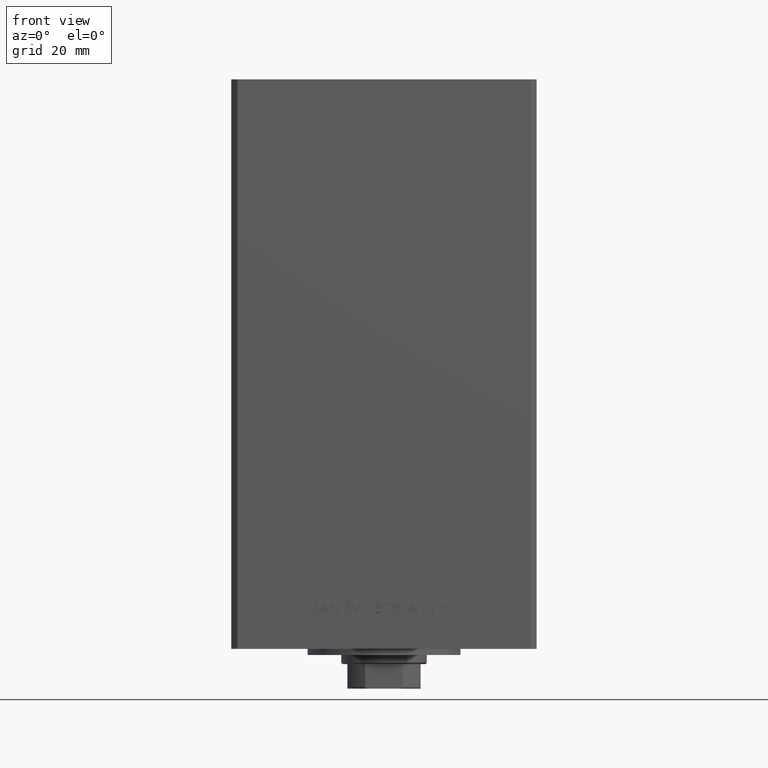
[diagram: clean part render]
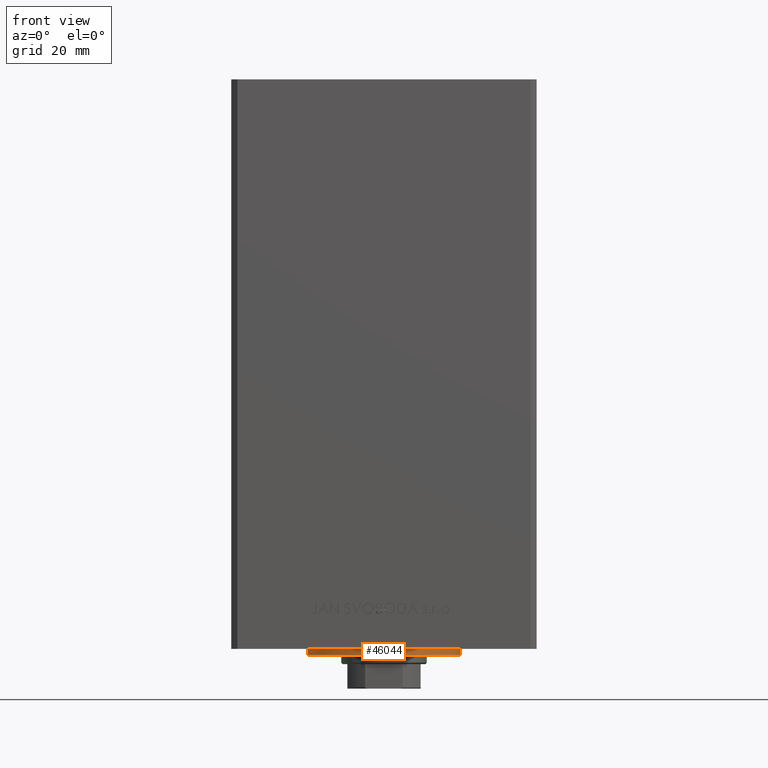
[diagram: same view with one face highlighted and labeled with its STEP entity id]
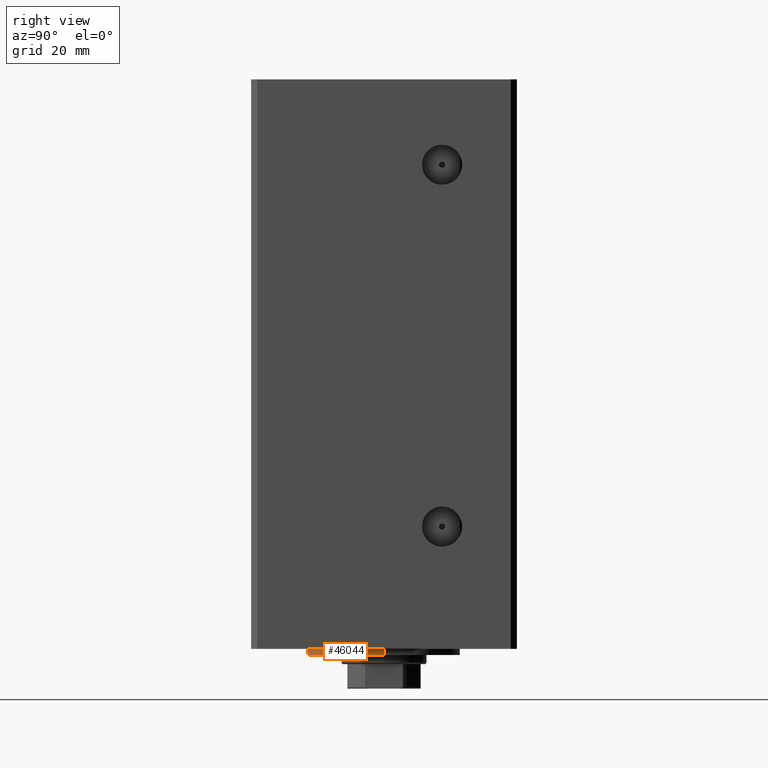
[diagram: same view with one face highlighted and labeled with its STEP entity id]
A machine part, front view. The second image highlights one B-rep face of the part: STEP entity #46044.
A second angle (right view) of the same face is appended — the face is thin or edge-on in the first view.
In plain terms, the highlighted cylindrical surface (partial cylindrical patch) has radius 25 mm, axis along (0, 0, 1).
Its self-contained STEP definition (entity closure, byte-faithful):
#336 = ORIENTED_EDGE ( 'NONE', *, *, #1061, .T. ) ;
#1061 = EDGE_CURVE ( 'NONE', #16385, #7352, #23842, .T. ) ;
#1760 = CARTESIAN_POINT ( 'NONE',  ( 0.000000000000000000, -6.938893903907228378E-15, 0.000000000000000000 ) ) ;
#2034 = AXIS2_PLACEMENT_3D ( 'NONE', #32909, #13839, #29161 ) ;
#2632 = CIRCLE ( 'NONE', #6653, 25.00000000000000000 ) ;
#2769 = VERTEX_POINT ( 'NONE', #18307 ) ;
#3892 = DIRECTION ( 'NONE',  ( 1.000000000000000000, 0.000000000000000000, 0.000000000000000000 ) ) ;
#5005 = VECTOR ( 'NONE', #42680, 1000.000000000000000 ) ;
#5008 = EDGE_CURVE ( 'NONE', #6382, #8108, #48324, .T. ) ;
#5616 = CARTESIAN_POINT ( 'NONE',  ( -25.00000000000000000, -6.938893903907228378E-15, 2.000000000000000000 ) ) ;
#5762 = DIRECTION ( 'NONE',  ( 1.000000000000000000, 0.000000000000000000, 0.000000000000000000 ) ) ;
#5830 = FACE_OUTER_BOUND ( 'NONE', #19287, .T. ) ;
#6044 = CARTESIAN_POINT ( 'NONE',  ( 0.000000000000000000, -6.938893903907228378E-15, 2.000000000000000000 ) ) ;
#6219 = EDGE_CURVE ( 'NONE', #43141, #8108, #18890, .T. ) ;
#6382 = VERTEX_POINT ( 'NONE', #39427 ) ;
#6653 = AXIS2_PLACEMENT_3D ( 'NONE', #46762, #12408, #3892 ) ;
#6726 = EDGE_CURVE ( 'NONE', #7352, #39366, #2632, .T. ) ;
#7352 = VERTEX_POINT ( 'NONE', #17288 ) ;
#7532 = ORIENTED_EDGE ( 'NONE', *, *, #49255, .T. ) ;
#7821 = AXIS2_PLACEMENT_3D ( 'NONE', #21206, #48022, #36487 ) ;
#8108 = VERTEX_POINT ( 'NONE', #27385 ) ;
#12408 = DIRECTION ( 'NONE',  ( 0.000000000000000000, 0.000000000000000000, 1.000000000000000000 ) ) ;
#13839 = DIRECTION ( 'NONE',  ( -0.000000000000000000, -0.000000000000000000, -1.000000000000000000 ) ) ;
#14943 = VECTOR ( 'NONE', #33182, 1000.000000000000000 ) ;
#15978 = DIRECTION ( 'NONE',  ( 0.000000000000000000, 0.000000000000000000, 1.000000000000000000 ) ) ;
#16385 = VERTEX_POINT ( 'NONE', #42669 ) ;
#16413 = DIRECTION ( 'NONE',  ( 0.000000000000000000, 0.000000000000000000, 1.000000000000000000 ) ) ;
#17288 = CARTESIAN_POINT ( 'NONE',  ( -23.57022603955158502, -8.333333333333332149, 0.000000000000000000 ) ) ;
#18307 = CARTESIAN_POINT ( 'NONE',  ( -25.00000000000000000, -6.938893903907228378E-15, 2.000000000000000000 ) ) ;
#18682 = CIRCLE ( 'NONE', #46707, 25.00000000000000000 ) ;
#18890 = LINE ( 'NONE', #27175, #5005 ) ;
#19287 = EDGE_LOOP ( 'NONE', ( #42205, #30027, #7532, #336, #26836, #22972, #34194 ) ) ;
#19571 = EDGE_CURVE ( 'NONE', #2769, #43141, #19875, .T. ) ;
#19875 = CIRCLE ( 'NONE', #38259, 25.00000000000000000 ) ;
#21148 = CYLINDRICAL_SURFACE ( 'NONE', #2034, 25.00000000000000000 ) ;
#21206 = CARTESIAN_POINT ( 'NONE',  ( 0.000000000000000000, -6.938893903907228378E-15, 0.000000000000000000 ) ) ;
#21368 = DIRECTION ( 'NONE',  ( 1.000000000000000000, 0.000000000000000000, 0.000000000000000000 ) ) ;
#22972 = ORIENTED_EDGE ( 'NONE', *, *, #36570, .T. ) ;
#23179 = CARTESIAN_POINT ( 'NONE',  ( 25.00000000000000000, -3.877276906038844941E-15, 2.000000000000000000 ) ) ;
#23842 = CIRCLE ( 'NONE', #7821, 25.00000000000000000 ) ;
#25115 = AXIS2_PLACEMENT_3D ( 'NONE', #45832, #15978, #26553 ) ;
#26553 = DIRECTION ( 'NONE',  ( 1.000000000000000000, 0.000000000000000000, 0.000000000000000000 ) ) ;
#26836 = ORIENTED_EDGE ( 'NONE', *, *, #6726, .T. ) ;
#27175 = CARTESIAN_POINT ( 'NONE',  ( 25.00000000000000000, -3.877276906038844941E-15, 2.000000000000000000 ) ) ;
#27385 = CARTESIAN_POINT ( 'NONE',  ( 25.00000000000000000, -3.877276906038844941E-15, 0.000000000000000000 ) ) ;
#29161 = DIRECTION ( 'NONE',  ( -1.000000000000000000, 0.000000000000000000, 0.000000000000000000 ) ) ;
#30027 = ORIENTED_EDGE ( 'NONE', *, *, #19571, .F. ) ;
#31391 = CARTESIAN_POINT ( 'NONE',  ( 0.000000000000000000, -25.00000000000000000, 0.000000000000000000 ) ) ;
#32909 = CARTESIAN_POINT ( 'NONE',  ( 0.000000000000000000, -6.938893903907228378E-15, 2.000000000000000000 ) ) ;
#33182 = DIRECTION ( 'NONE',  ( -0.000000000000000000, -0.000000000000000000, -1.000000000000000000 ) ) ;
#34194 = ORIENTED_EDGE ( 'NONE', *, *, #5008, .T. ) ;
#36487 = DIRECTION ( 'NONE',  ( 1.000000000000000000, 0.000000000000000000, 0.000000000000000000 ) ) ;
#36570 = EDGE_CURVE ( 'NONE', #39366, #6382, #18682, .T. ) ;
#38259 = AXIS2_PLACEMENT_3D ( 'NONE', #6044, #16413, #21368 ) ;
#39366 = VERTEX_POINT ( 'NONE', #31391 ) ;
#39427 = CARTESIAN_POINT ( 'NONE',  ( 23.57022603955158502, -8.333333333333332149, 0.000000000000000000 ) ) ;
#40128 = DIRECTION ( 'NONE',  ( 0.000000000000000000, 0.000000000000000000, 1.000000000000000000 ) ) ;
#42205 = ORIENTED_EDGE ( 'NONE', *, *, #6219, .F. ) ;
#42669 = CARTESIAN_POINT ( 'NONE',  ( -25.00000000000000000, -6.938893903907228378E-15, 0.000000000000000000 ) ) ;
#42680 = DIRECTION ( 'NONE',  ( -0.000000000000000000, -0.000000000000000000, -1.000000000000000000 ) ) ;
#43141 = VERTEX_POINT ( 'NONE', #23179 ) ;
#43730 = LINE ( 'NONE', #5616, #14943 ) ;
#45832 = CARTESIAN_POINT ( 'NONE',  ( 0.000000000000000000, -6.938893903907228378E-15, 0.000000000000000000 ) ) ;
#46044 = ADVANCED_FACE ( 'NONE', ( #5830 ), #21148, .T. ) ;
#46707 = AXIS2_PLACEMENT_3D ( 'NONE', #1760, #40128, #5762 ) ;
#46762 = CARTESIAN_POINT ( 'NONE',  ( 0.000000000000000000, -6.938893903907228378E-15, 0.000000000000000000 ) ) ;
#48022 = DIRECTION ( 'NONE',  ( 0.000000000000000000, 0.000000000000000000, 1.000000000000000000 ) ) ;
#48324 = CIRCLE ( 'NONE', #25115, 25.00000000000000000 ) ;
#49255 = EDGE_CURVE ( 'NONE', #2769, #16385, #43730, .T. ) ;